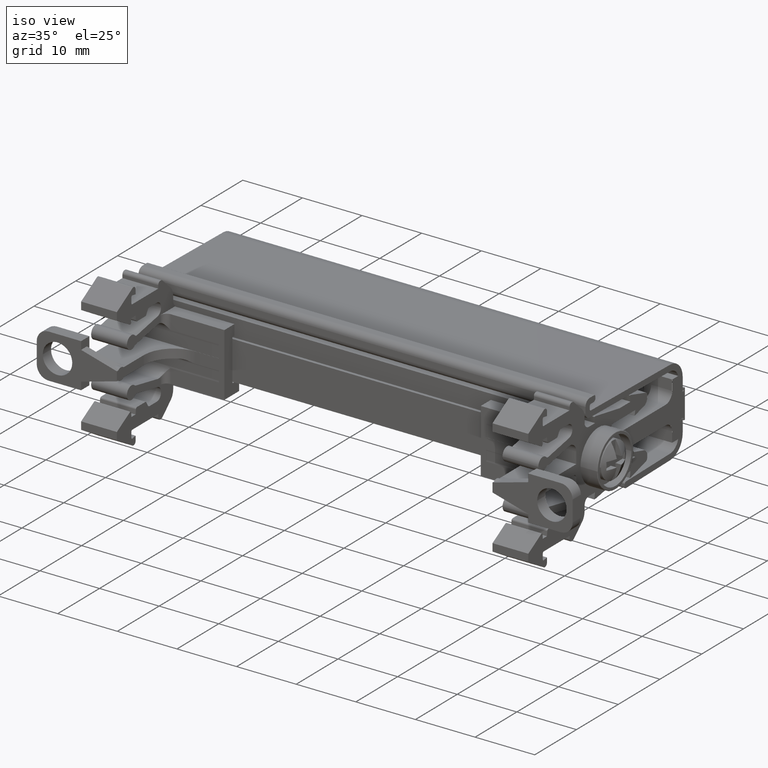
[diagram: clean part render]
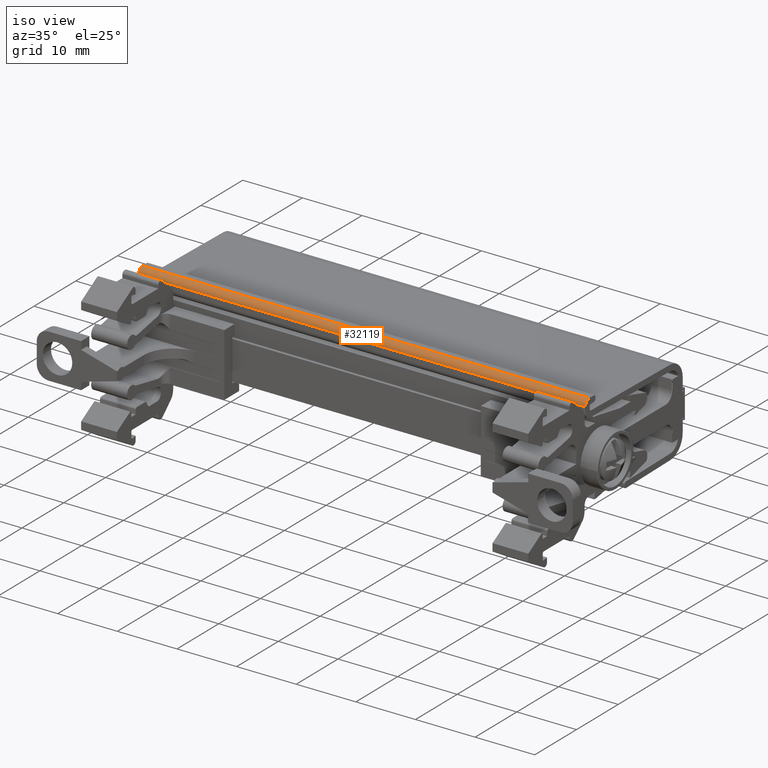
[diagram: same view with one face highlighted and labeled with its STEP entity id]
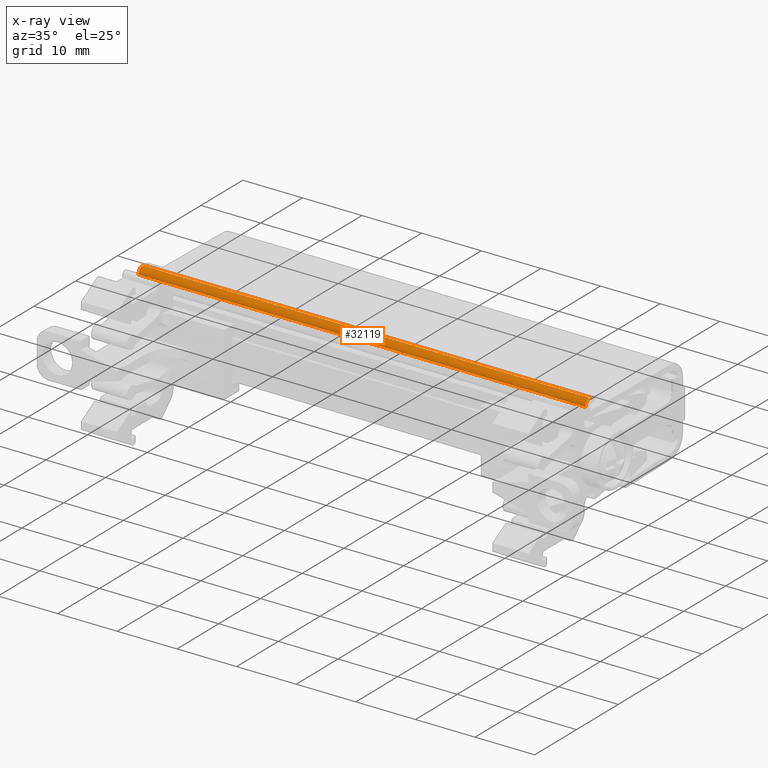
[diagram: x-ray of the same camera — body ghosted, the highlighted face saturated]
A machine part, iso view. The second image highlights one B-rep face of the part: STEP entity #32119.
The next image is the same camera in x-ray: the body ghosted, the highlighted face saturated — about 0% of this face is hidden behind the body in this view.
In plain terms, the highlighted cylindrical surface (edge-blend (fillet) strip) has radius 1.0034 mm, axis along (-1, -0, 0).
Its self-contained STEP definition (entity closure, byte-faithful):
#5 = VECTOR ( 'NONE', #36251, 1000.000000000000000 ) ;
#574 = CIRCLE ( 'NONE', #602, 1.003361012255010700 ) ;
#580 = AXIS2_PLACEMENT_3D ( 'NONE', #35036, #35047, #35056 ) ;
#592 = VECTOR ( 'NONE', #35573, 1000.000000000000000 ) ;
#602 = AXIS2_PLACEMENT_3D ( 'NONE', #16746, #16771, #16747 ) ;
#605 = CIRCLE ( 'NONE', #580, 1.003361012255010700 ) ;
#3259 = EDGE_LOOP ( 'NONE', ( #38999, #39050, #39046, #39082 ) ) ;
#3827 = EDGE_CURVE ( 'NONE', #33801, #12446, #574, .T. ) ;
#3890 = EDGE_CURVE ( 'NONE', #12417, #12446, #35498, .T. ) ;
#3915 = EDGE_CURVE ( 'NONE', #12417, #33819, #605, .T. ) ;
#5057 = CARTESIAN_POINT ( 'NONE',  ( -266.9752350520578300, -122.1536580816282800, 149.4912021016123700 ) ) ;
#5098 = CARTESIAN_POINT ( 'NONE',  ( -191.9827637199361700, -122.1536580816274700, 149.4912021016123700 ) ) ;
#7566 = EDGE_CURVE ( 'NONE', #33819, #33801, #36267, .T. ) ;
#12417 = VERTEX_POINT ( 'NONE', #5098 ) ;
#12446 = VERTEX_POINT ( 'NONE', #5057 ) ;
#16746 = CARTESIAN_POINT ( 'NONE',  ( -266.9752350520578300, -121.1502970693733100, 149.4912021016132500 ) ) ;
#16747 = DIRECTION ( 'NONE',  ( -5.532520254748478000E-014, 1.000000000000000000, 0.0000000000000000000 ) ) ;
#16771 = DIRECTION ( 'NONE',  ( 1.000000000000000000, 4.308766695157535600E-014, 9.454113442147763200E-015 ) ) ;
#21515 = CARTESIAN_POINT ( 'NONE',  ( -266.9752350520578300, -121.1502970693745500, 150.4945631138682800 ) ) ;
#21561 = CARTESIAN_POINT ( 'NONE',  ( -191.9827637199361700, -121.1502970693737400, 150.4945631138679400 ) ) ;
#29860 = AXIS2_PLACEMENT_3D ( 'NONE', #37099, #37170, #37172 ) ;
#32119 = ADVANCED_FACE ( 'NONE', ( #37104 ), #37189, .T. ) ;
#33801 = VERTEX_POINT ( 'NONE', #21515 ) ;
#33819 = VERTEX_POINT ( 'NONE', #21561 ) ;
#35036 = CARTESIAN_POINT ( 'NONE',  ( -191.9827637199361700, -121.1502970693724800, 149.4912021016129400 ) ) ;
#35047 = DIRECTION ( 'NONE',  ( -1.000000000000000000, -1.100060687039804000E-014, 4.519788888257536600E-015 ) ) ;
#35056 = DIRECTION ( 'NONE',  ( 0.0000000000000000000, -1.000000000000000000, 0.0000000000000000000 ) ) ;
#35498 = LINE ( 'NONE', #35589, #592 ) ;
#35573 = DIRECTION ( 'NONE',  ( -1.000000000000000000, -1.100161628464494200E-014, -0.0000000000000000000 ) ) ;
#35589 = CARTESIAN_POINT ( 'NONE',  ( -116.7027637199362300, -122.1536580816266300, 149.4912021016123700 ) ) ;
#36249 = CARTESIAN_POINT ( 'NONE',  ( -116.7027637199362600, -121.1502970693729000, 150.4945631138676000 ) ) ;
#36251 = DIRECTION ( 'NONE',  ( -1.000000000000000000, -1.100161628464494200E-014, 4.515800400741819200E-015 ) ) ;
#36267 = LINE ( 'NONE', #36249, #5 ) ;
#37099 = CARTESIAN_POINT ( 'NONE',  ( -116.7027637199362600, -121.1502970693716500, 149.4912021016126000 ) ) ;
#37104 = FACE_OUTER_BOUND ( 'NONE', #3259, .T. ) ;
#37170 = DIRECTION ( 'NONE',  ( -1.000000000000000000, -1.100161628464494200E-014, 4.515800400741819200E-015 ) ) ;
#37172 = DIRECTION ( 'NONE',  ( 1.383130063687119500E-014, -1.000000000000000000, 0.0000000000000000000 ) ) ;
#37189 = CYLINDRICAL_SURFACE ( 'NONE', #29860, 1.003361012255010700 ) ;
#38999 = ORIENTED_EDGE ( 'NONE', *, *, #3890, .F. ) ;
#39046 = ORIENTED_EDGE ( 'NONE', *, *, #7566, .T. ) ;
#39050 = ORIENTED_EDGE ( 'NONE', *, *, #3915, .T. ) ;
#39082 = ORIENTED_EDGE ( 'NONE', *, *, #3827, .T. ) ;